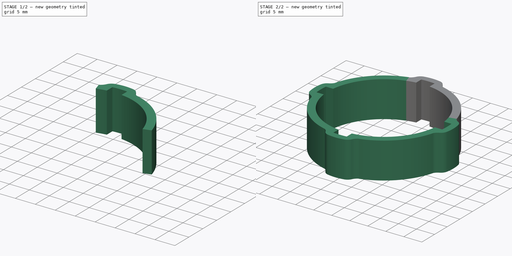
[diagram: build sequence overview — one tinted view per stage of 2, left to right]
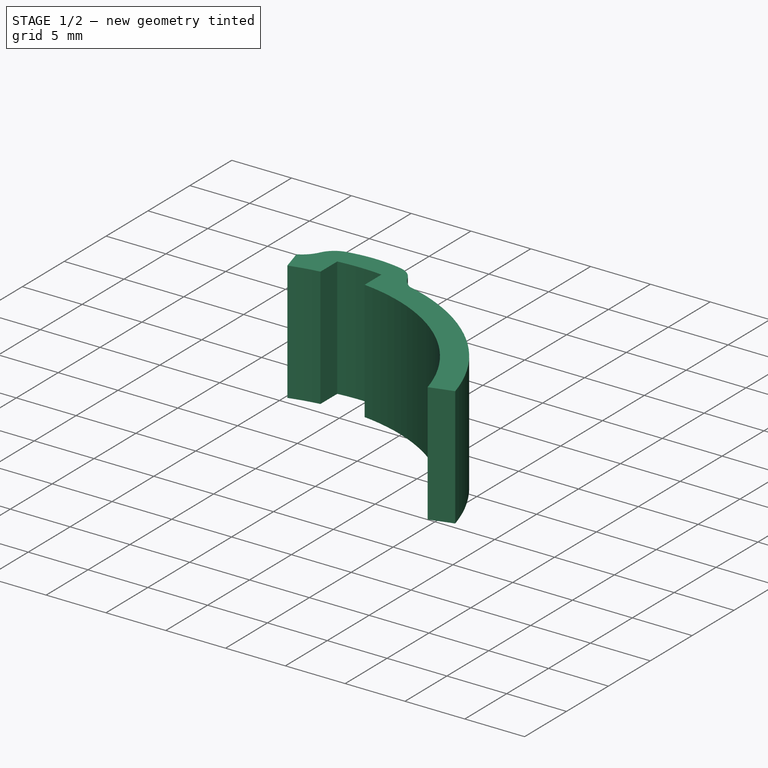
[diagram: stage 1 of 2 — iso view after this stage's code; geometry added in this stage tinted green]
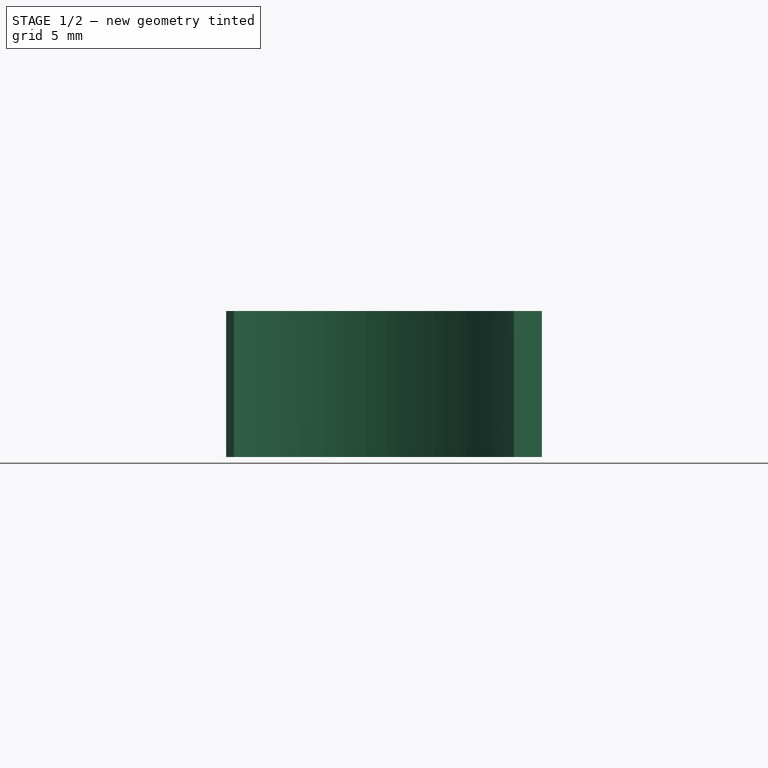
[diagram: stage 1 of 2 — front view after this stage's code; geometry added in this stage tinted green]
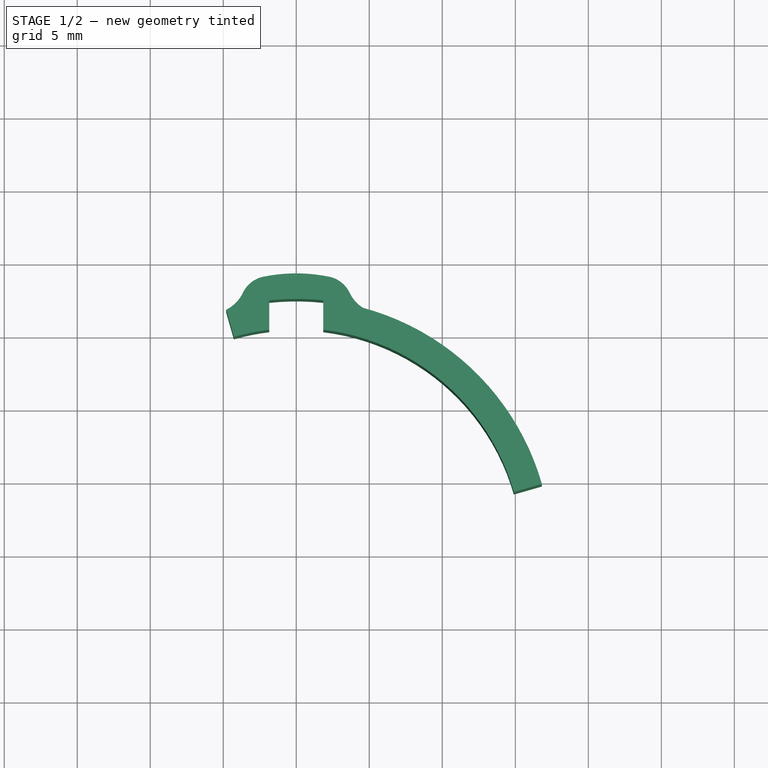
[diagram: stage 1 of 2 — top view after this stage's code; geometry added in this stage tinted green]
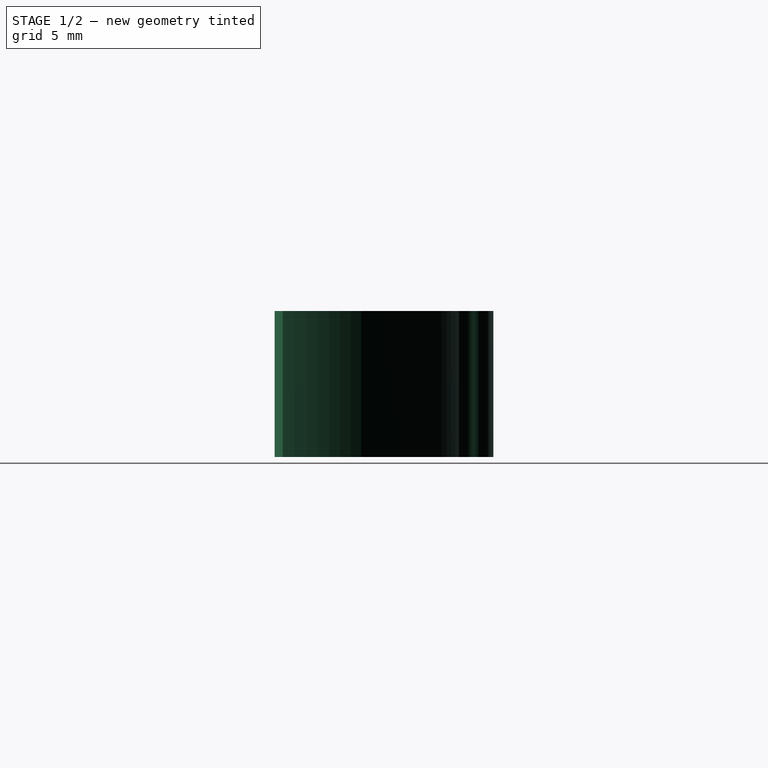
[diagram: stage 1 of 2 — right view after this stage's code; geometry added in this stage tinted green]
FCSTD DOCUMENT  (FreeCAD 0.20R29410 (Git))
Label: MangoJelly_Solutions_Tutorial_Ep5_1
License: All rights reserved
LicenseURL: http://en.wikipedia.org/wiki/All_rights_reserved
objects: Image::ImagePlane×1, Sketcher::SketchObject×1, PartDesign::Pad×1, PartDesign::PolarPattern×1, PartDesign::Body×1
note: 5 computed .brp shape members not serialized (recipe doc carries the construction recipe); baked Part::Feature solids carry a one-line shape summary decoded from their .brp

FEATURE [Image::ImagePlane] ImagePlane  label="TopPlane"
  Placement = pos=(-0.4,-2.5,0) rot=(0,0,1;0.017453rad)
  XSize = 123.023
  YSize = 81.709
FEATURE [Sketcher::SketchObject] Sketch
  FullyConstrained = true
  MapMode = 5
  Support = -> [XY_Plane]
  sketch-geometry (15):
    g0: LineSegment StartX=0 StartY=0 StartZ=0 EndX=-4.80534 EndY=16.7582 EndZ=0
    g1: LineSegment StartX=0 StartY=0 StartZ=0 EndX=16.8221 EndY=4.82365 EndZ=0
    g2: ArcOfCircle CenterX=0 CenterY=0 CenterZ=0 NormalX=0 NormalY=0 NormalZ=1 AngleXU=0 Radius=17.5 StartAngle=0.279253 EndAngle=1.30693
    g3: ArcOfCircle CenterX=0 CenterY=0 CenterZ=0 NormalX=0 NormalY=0 NormalZ=1 AngleXU=0 Radius=15.5 StartAngle=0.279253 EndAngle=1.45116
    g4: LineSegment StartX=14.8996 StartY=4.27238 StartZ=0 EndX=16.8221 EndY=4.82365 EndZ=0
    g5: LineSegment StartX=-4.27238 StartY=14.8996 StartZ=0 EndX=-4.80534 EndY=16.7582 EndZ=0
    g6: ArcOfCircle CenterX=-5.91183 CenterY=19 CenterZ=0 NormalX=0 NormalY=0 NormalZ=1 AngleXU=0 Radius=2.5 StartAngle=5.17088 EndAngle=5.83823
    g7: ArcOfCircle CenterX=-1.85 CenterY=17.0631 CenterZ=0 NormalX=0 NormalY=0 NormalZ=1 AngleXU=0 Radius=2 StartAngle=1.77215 EndAngle=2.69664
    g8: ArcOfCircle CenterX=9.1e-15 CenterY=8 CenterZ=0 NormalX=0 NormalY=0 NormalZ=1 AngleXU=0 Radius=11.25 StartAngle=1.36944 EndAngle=1.77215
    g9: ArcOfCircle CenterX=1.85 CenterY=17.0631 CenterZ=0 NormalX=0 NormalY=0 NormalZ=1 AngleXU=0 Radius=2 StartAngle=0.444958 EndAngle=1.36944
    g10: ArcOfCircle CenterX=5.91183 CenterY=19 CenterZ=0 NormalX=0 NormalY=0 NormalZ=1 AngleXU=0 Radius=2.5 StartAngle=3.58655 EndAngle=4.14308
    g11: LineSegment StartX=-1.85 StartY=15.3892 StartZ=0 EndX=-1.85 EndY=17.4019 EndZ=0
    g12: LineSegment StartX=1.85 StartY=17.4019 StartZ=0 EndX=1.85 EndY=15.3892 EndZ=0
    g13: ArcOfCircle CenterX=0 CenterY=0 CenterZ=0 NormalX=0 NormalY=0 NormalZ=1 AngleXU=0 Radius=15.5 StartAngle=1.69044 EndAngle=1.85005
    g14: ArcOfCircle CenterX=0 CenterY=0 CenterZ=0 NormalX=0 NormalY=0 NormalZ=1 AngleXU=0 Radius=17.5 StartAngle=1.46488 EndAngle=1.67671
  constraints (43):
    c: Coincident(g0,g-1)
    c: Coincident(g1,g0)
    c: Angle(g1,g0) = 1.5708
    c: Coincident(g2,g0)
    c: Coincident(g2,g1)
    c: Coincident(g3,g2)
    c: PointOnObject(g13,g0)
    c: PointOnObject(g3,g1)
    c: Coincident(g4,g3)
    c: Coincident(g4,g2)
    c: Coincident(g5,g13)
    c: Coincident(g5,g0)
    c: Radius(g2) = 17.5
    c: Radius(g3) = 15.5
    c: Angle(g-1,g1) = 0.279253
    c: Coincident(g6,g0)
    c: Coincident(g8,g7)
    c: Tangent(g7,g6) = 1.5708
    c: Tangent(g10,g9) = 1.5708
    c: DistanceY(g2,g8) = 8
    c: Symmetric(g7,g8,g-2)
    c: Symmetric(g9,g7,g-2)
    c: Symmetric(g10,g6,g-2)
    c: Radius(g6) = 2.5
    c: Radius(g7) = 2
    c: Radius(g8) = 11.25
    c: DistanceX(g7,g9) = 3.7
    c: Coincident(g9,g8)
    c: DistanceX(g7,g8) = 4.5
    c: Vertical(g12)
    c: Vertical(g11)
    c: Symmetric(g11,g12,g-2)
    c: PointOnObject(g7,g11)
    c: Coincident(g14,g11)
    c: DistanceY(g2,g6) = 19
    c: Equal(g3,g13)
    c: PointOnObject(g3,g12)
    c: Coincident(g13,g11)
    c: Coincident(g3,g13)
    c: Equal(g2,g14)
    c: Coincident(g2,g10)
    c: Coincident(g14,g12)
    c: Coincident(g2,g14)
FEATURE [PartDesign::Pad] Pad
  Direction = (0,0,1)
  Length = 10
  Length2 = 10
  Profile = -> Sketch
  ReferenceAxis = -> Sketch [N_Axis]
  Type = 0
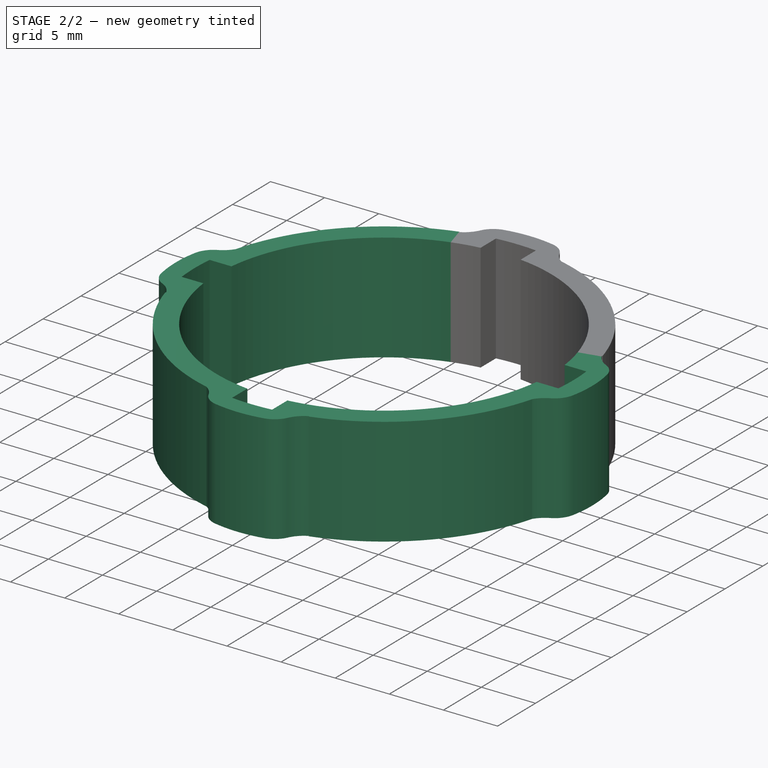
[diagram: stage 2 of 2 — iso view after this stage's code; geometry added in this stage tinted green]
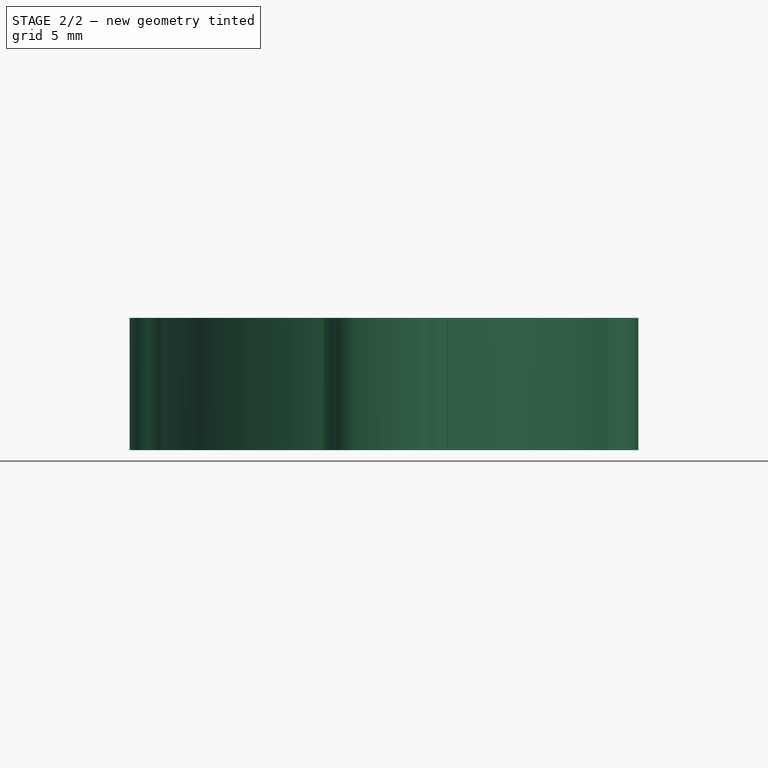
[diagram: stage 2 of 2 — front view after this stage's code; geometry added in this stage tinted green]
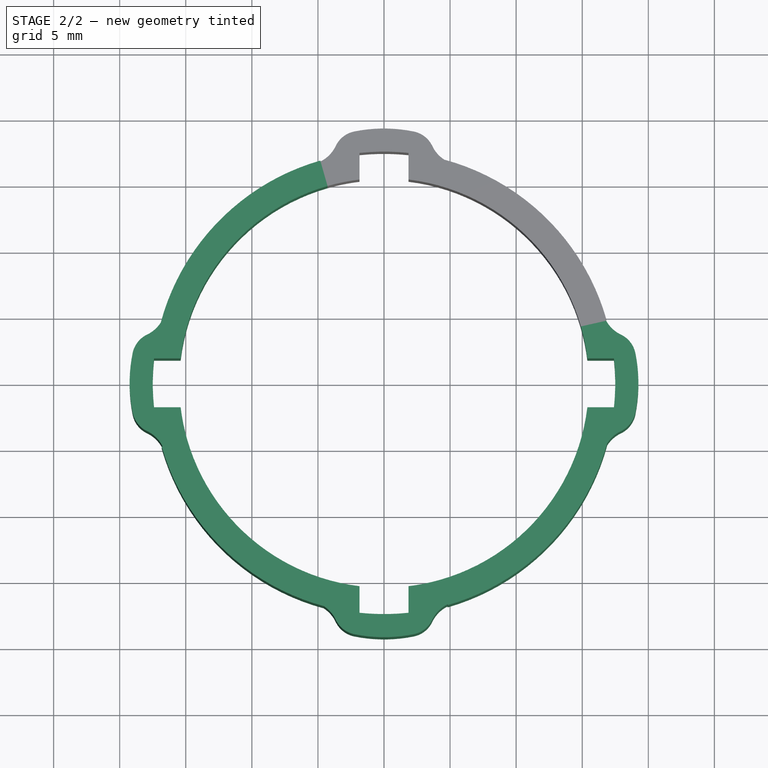
[diagram: stage 2 of 2 — top view after this stage's code; geometry added in this stage tinted green]
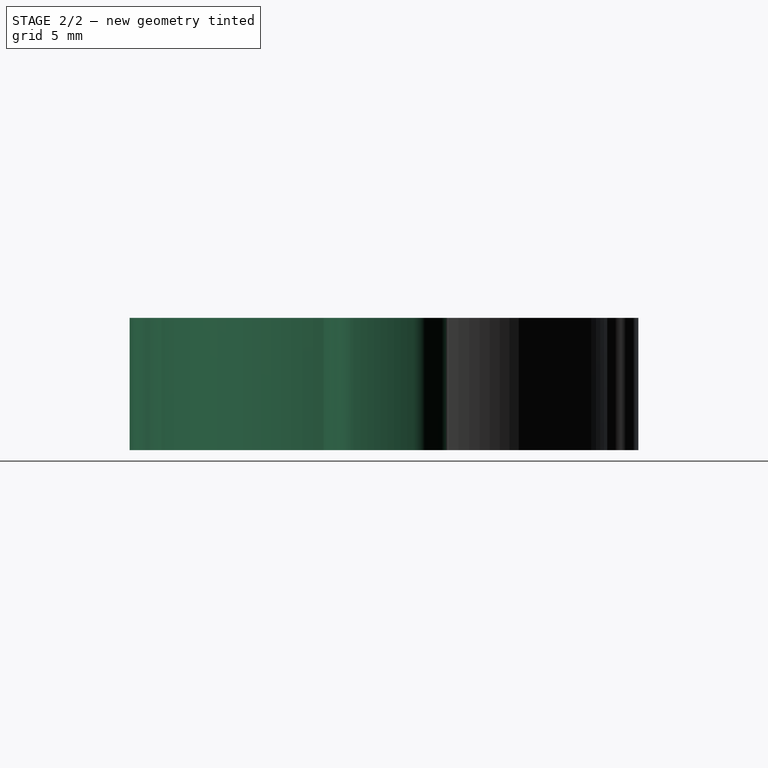
[diagram: stage 2 of 2 — right view after this stage's code; geometry added in this stage tinted green]
FEATURE [PartDesign::PolarPattern] PolarPattern
  Angle = 360
  Axis = -> Sketch [N_Axis]
  BaseFeature = -> Pad
  Occurrences = 4
  Originals = -> [Pad]
  Refine = true
FEATURE [PartDesign::Body] Body
  Group = -> [Sketch,Pad,PolarPattern]
  Origin = -> Origin
  Tip = -> PolarPattern
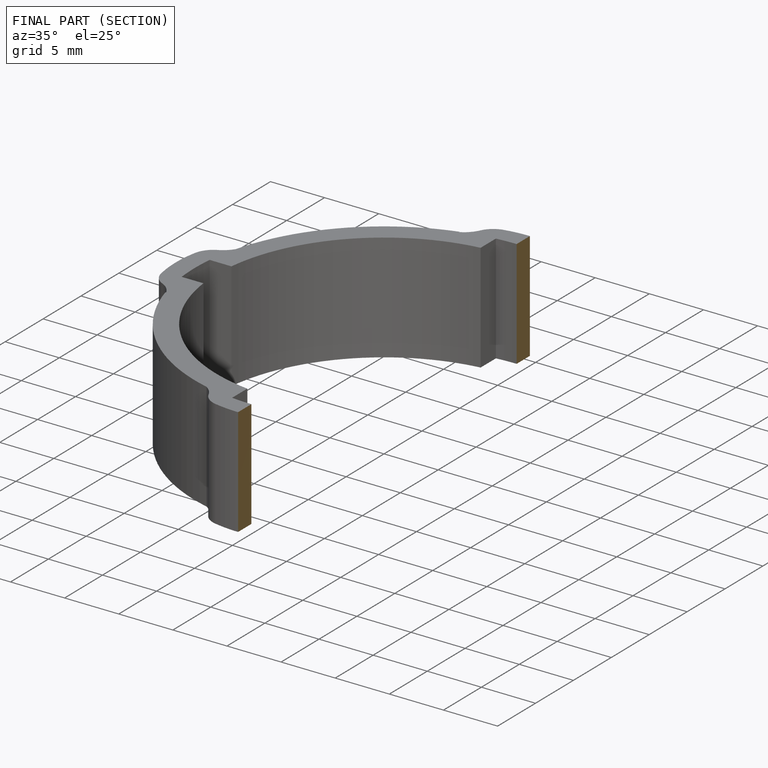
[diagram: finished part — half-section view (interior)]
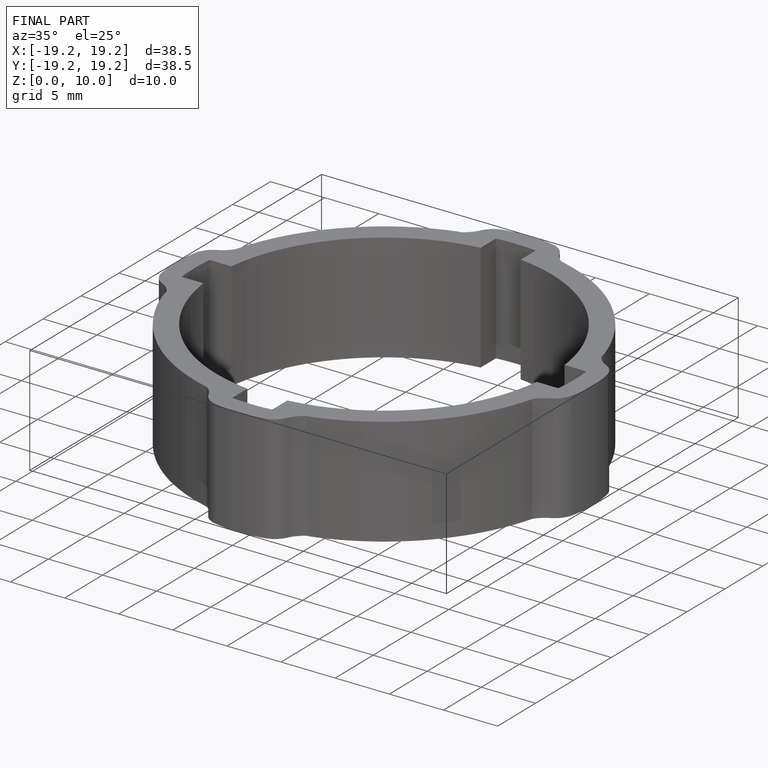
[diagram: finished part — iso view with bounding-box wireframe]
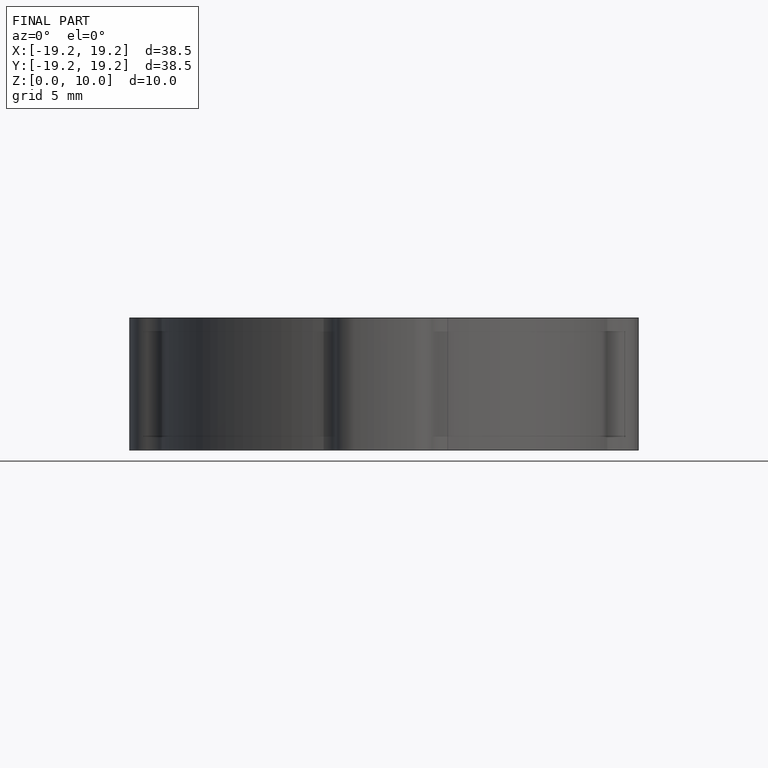
[diagram: finished part — front view with bounding-box wireframe]
